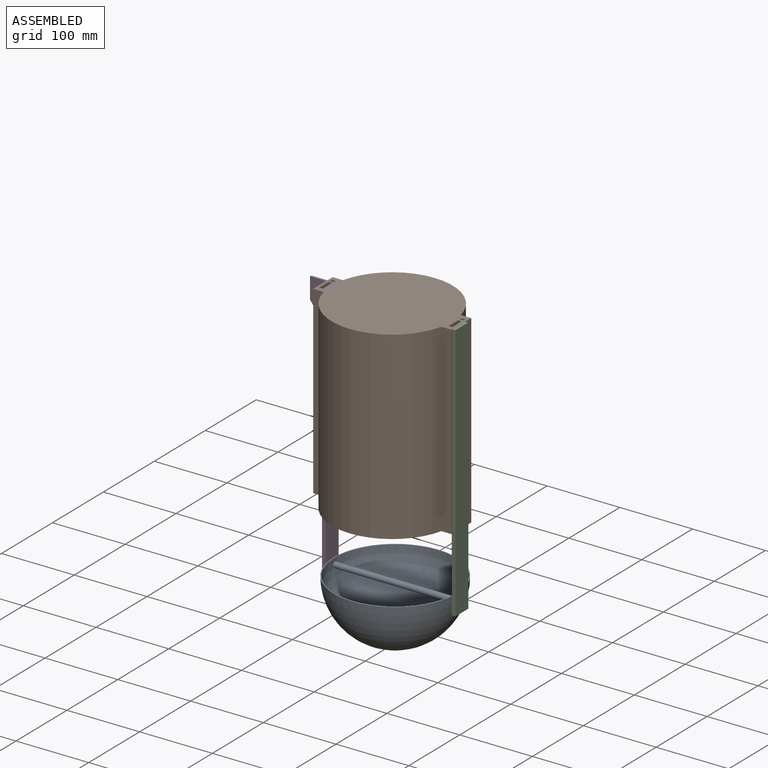
[diagram: assembled view]
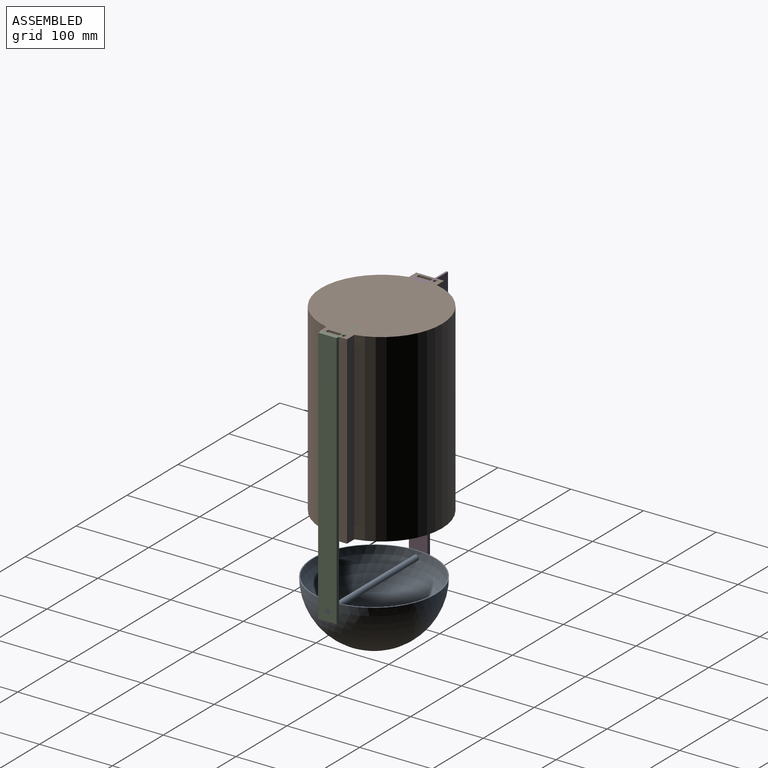
[diagram: assembled view, second angle]
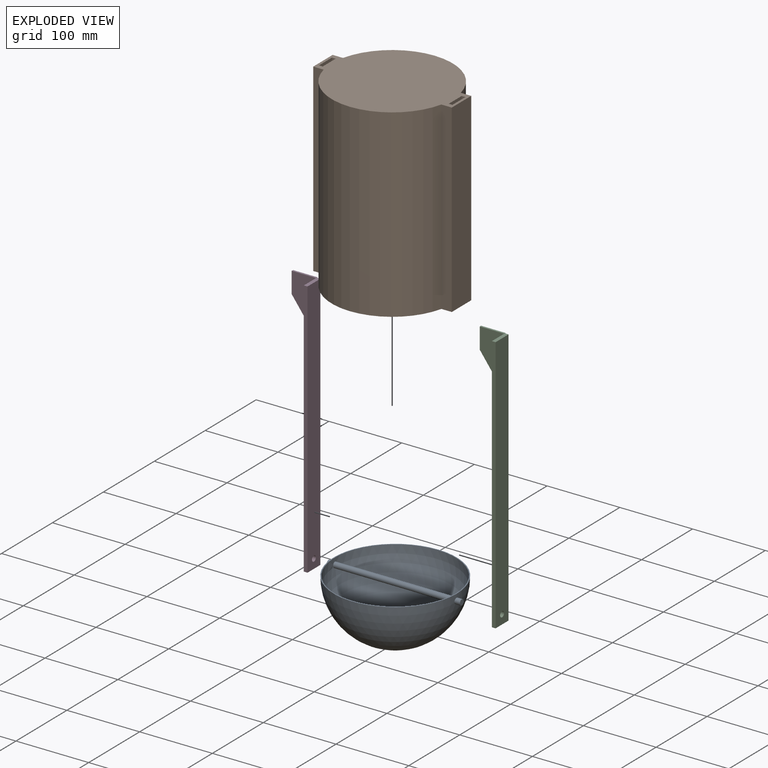
[diagram: exploded view]
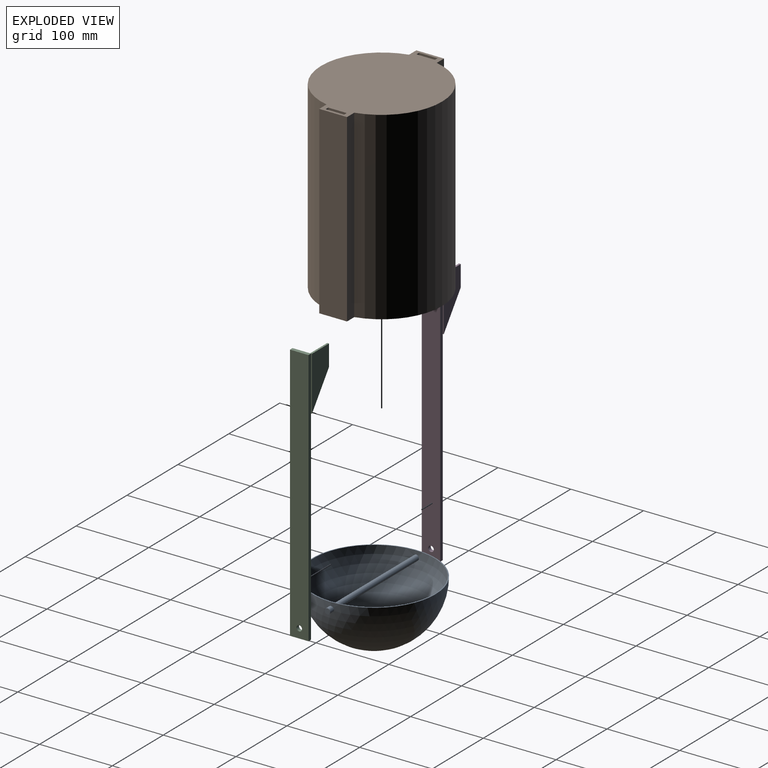
[diagram: exploded view, second angle]
ASSEMBLY  parts=4 mates=4
PART A: 8 faces, bbox 183.4x169x84.5 mm
  f0: sphere r=83.18mm, area 43386.9mm2, adj f2,f7
  f1: sphere r=84.51mm, area 44779mm2, adj f2,f4,f6
  f2: plane 169.01x169.01mm, normal (0,0,1), area 696.2mm2, adj f0,f1
  f3: plane 7.62x7.62mm, normal (1,0,0), area 45.6mm2, adj f4
  f4: cylinder r=3.81mm len=8.14mm, axis (-1,0,0), area 185.2mm2, adj f1,f3
  f5: plane 7.62x7.62mm, normal (-1,0,0), area 45.6mm2, adj f6
  f6: cylinder r=3.81mm len=8.14mm, axis (-1,0,0), area 185.2mm2, adj f1,f5
  f7: cylinder r=3.81mm len=166.07mm, axis (-1,0,0), area 3956mm2, adj f0
PART B: 18 faces, bbox 254x190.5x166.4 mm
  f0: plane 254x5.08mm, normal (0,0,-1), area 1290.3mm2, adj f1,f15,f16,f17
  f1: plane 254x25.4mm, normal (0,-1,0), area 6451.6mm2, adj f0,f2,f16,f17
  f2: plane 254x5.08mm, normal (0,0,1), area 1290.3mm2, adj f1,f15,f16,f17
  f3: plane 254x5.08mm, normal (0,0,-1), area 1290.3mm2, adj f4,f13,f16,f17
  f4: plane 254x25.4mm, normal (0,-1,0), area 6451.6mm2, adj f3,f5,f16,f17
  f5: plane 254x5.08mm, normal (0,0,1), area 1290.3mm2, adj f4,f13,f16,f17
  f6: plane 254x38.1mm, normal (0,1,0), area 9677.4mm2, adj f7,f14,f16,f17
  f7: plane 254x14.28mm, normal (0,0,1), area 3626mm2, adj f6,f8,f16,f17
  f8: cylinder r=83.18mm len=254mm, axis (-1,0,0), area 56614.6mm2, adj f7,f9,f16,f17
  f9: plane 254x14.28mm, normal (0,0,1), area 3626mm2, adj f8,f10,f16,f17
  f10: plane 254x38.1mm, normal (0,-1,0), area 9677.4mm2, adj f9,f11,f16,f17
  f11: plane 254x14.28mm, normal (0,0,-1), area 3626mm2, adj f10,f12,f16,f17
  f12: cylinder r=83.18mm len=254mm, axis (-1,0,0), area 56614.6mm2, adj f11,f14,f16,f17
  f13: plane 254x25.4mm, normal (0,1,0), area 6451.6mm2, adj f3,f5,f16,f17
  f14: plane 254x14.28mm, normal (0,0,-1), area 3626mm2, adj f6,f12,f16,f17
  f15: plane 254x25.4mm, normal (0,1,0), area 6451.6mm2, adj f0,f2,f16,f17
  f16: plane 190.5x166.37mm, normal (1,0,0), area 22456.2mm2, adj f0,f1,f2,f3,f4,f5,f6,f7
  f17: plane 190.5x166.37mm, normal (-1,0,0), area 22456.2mm2, adj f0,f1,f2,f3,f4,f5,f6,f7
PART C: 12 faces, bbox 26.7x355.6x38.6 mm
  f0: plane 355.6x5.08mm, normal (-1,0,0), area 1806.4mm2, adj f1,f3,f5,f6,f8
  f1: plane 25.4x5.08mm, normal (0,-1,0), area 129mm2, adj f0,f2,f5,f6
  f2: plane 355.6x5.08mm, normal (1,0,0), area 1806.4mm2, adj f1,f3,f5,f6
  f3: plane 38.63x26.67mm, normal (0,1,0), area 214.2mm2, adj f0,f2,f5,f6,f7,f8,f10,f11
  f4: cylinder r=3.81mm len=7.62mm, axis (0,0,-1), area 121.6mm2, adj f5,f6
  f5: plane 355.6x25.4mm, normal (0,0,1), area 8892mm2, adj f0,f1,f2,f3,f4,f9,f10
  f6: plane 355.6x25.4mm, normal (0,0,-1), area 8986.6mm2, adj f0,f1,f2,f3,f4
  f7: plane 28.99x2.54mm, normal (0,0,1), area 73.6mm2, adj f3,f9,f10,f11
  f8: plane 74.54x1.27mm, normal (0,0,-1), area 94.7mm2, adj f0,f3,f9,f11
  f9: plane 45.55x33.55mm, normal (0,-0.59,0.81), area 143.7mm2, adj f5,f7,f8,f10,f11
  f10: plane 74.54x33.55mm, normal (1,0,0), area 1736.4mm2, adj f3,f5,f7,f9
  f11: plane 74.54x33.55mm, normal (-1,0,0), area 1736.4mm2, adj f3,f7,f8,f9
PART D: same geometry as C
PLACE A t=(-15.77,138.79,41.89)mm fixed
PLACE B rot(axis=(-0.58,-0.58,-0.58),120deg) t=(-18.88,143.84,121.97)mm
PLACE C rot(axis=(0.58,-0.58,-0.58),120deg) t=(75.92,138.79,33.07)mm
PLACE D rot(axis=(0.58,-0.58,-0.58),120deg) t=(-102.39,138.79,33.07)mm
MATE cylindrical D.f3 <-> B.f16  axis (0,0,1) through (-112.61,143.84,375.97)mm
MATE fastened D.f4 <-> A.f4  axis (-1,0,0) through (-107.47,138.79,33.07)mm
MATE fastened C.f4 <-> A.f4  axis (1,0,0) through (75.92,138.79,33.07)mm
MATE cylindrical B.f16 <-> C.f3  axis (0,0,1) through (65.7,143.84,375.97)mm
